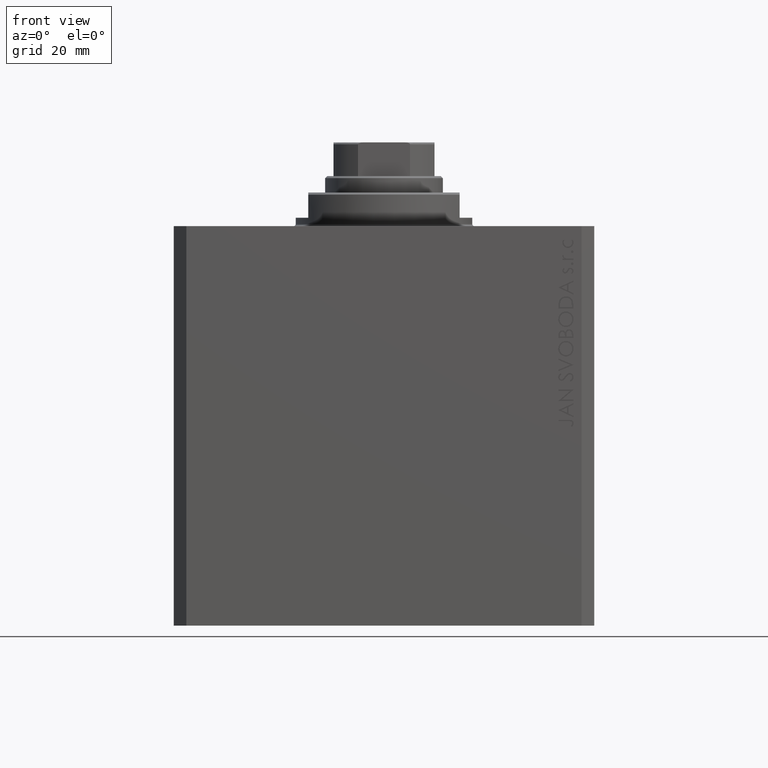
[diagram: clean part render]
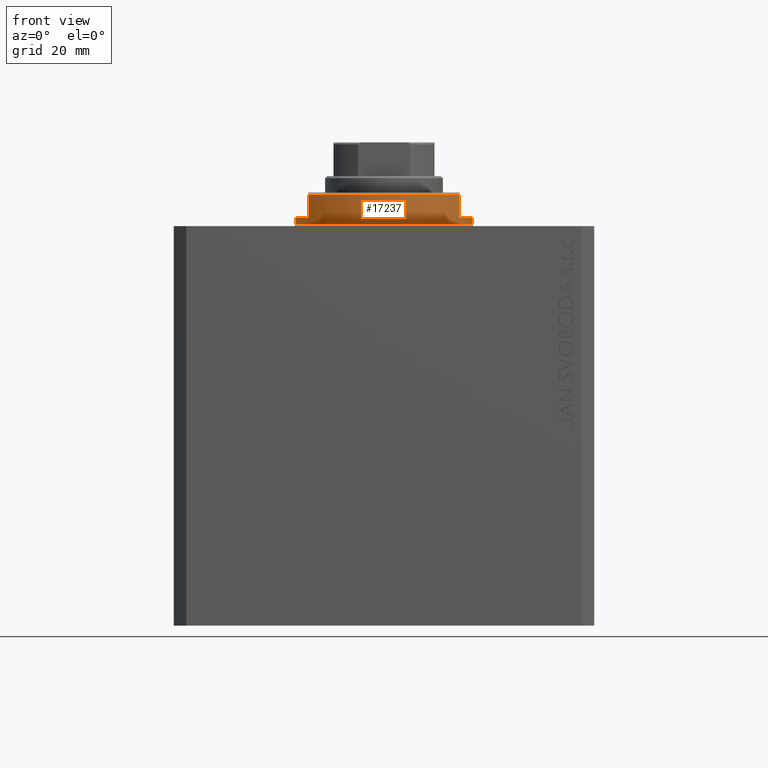
[diagram: same view with one face highlighted and labeled with its STEP entity id]
A machine part, front view. The second image highlights one B-rep face of the part: STEP entity #17237.
In plain terms, the highlighted cylindrical surface (partial cylindrical patch) has radius 21 mm, axis along (0, 0, -1).
Its self-contained STEP definition (entity closure, byte-faithful):
#1282 = CARTESIAN_POINT ( 'NONE',  ( 0.000000000000000000, 0.000000000000000000, -2.000000000000000000 ) ) ;
#1566 = CARTESIAN_POINT ( 'NONE',  ( 0.000000000000000000, 0.000000000000000000, -8.000000000000000000 ) ) ;
#1619 = DIRECTION ( 'NONE',  ( 0.000000000000000000, 0.000000000000000000, -1.000000000000000000 ) ) ;
#3015 = EDGE_CURVE ( 'NONE', #3108, #29620, #19132, .T. ) ;
#3108 = VERTEX_POINT ( 'NONE', #4013 ) ;
#3306 = DIRECTION ( 'NONE',  ( -1.000000000000000000, 0.000000000000000000, 0.000000000000000000 ) ) ;
#4013 = CARTESIAN_POINT ( 'NONE',  ( 21.00000000000000000, 0.000000000000000000, -2.000000000000000000 ) ) ;
#4133 = VERTEX_POINT ( 'NONE', #41981 ) ;
#4980 = CARTESIAN_POINT ( 'NONE',  ( 18.00000000000000000, -10.81665382639197048, -8.000000000000000000 ) ) ;
#7374 = CIRCLE ( 'NONE', #34120, 21.00000000000000000 ) ;
#7529 = EDGE_LOOP ( 'NONE', ( #31384, #17554, #8986, #36182, #19441, #44678, #47076, #8065 ) ) ;
#8065 = ORIENTED_EDGE ( 'NONE', *, *, #8830, .T. ) ;
#8830 = EDGE_CURVE ( 'NONE', #24578, #14911, #44404, .T. ) ;
#8986 = ORIENTED_EDGE ( 'NONE', *, *, #25280, .T. ) ;
#8996 = DIRECTION ( 'NONE',  ( 1.000000000000000000, 0.000000000000000000, 0.000000000000000000 ) ) ;
#12346 = CARTESIAN_POINT ( 'NONE',  ( 0.000000000000000000, 0.000000000000000000, -0.5000000000000004441 ) ) ;
#12759 = DIRECTION ( 'NONE',  ( -1.000000000000000000, 0.000000000000000000, 0.000000000000000000 ) ) ;
#13078 = CARTESIAN_POINT ( 'NONE',  ( -18.00000000000000000, -10.81665382639197048, -8.000000000000000000 ) ) ;
#14911 = VERTEX_POINT ( 'NONE', #45099 ) ;
#15059 = CARTESIAN_POINT ( 'NONE',  ( 0.000000000000000000, 0.000000000000000000, -2.000000000000000000 ) ) ;
#15074 = LINE ( 'NONE', #38018, #24481 ) ;
#15451 = LINE ( 'NONE', #22648, #35521 ) ;
#16047 = VERTEX_POINT ( 'NONE', #20155 ) ;
#16960 = EDGE_CURVE ( 'NONE', #29620, #4133, #38498, .T. ) ;
#17237 = ADVANCED_FACE ( 'NONE', ( #41109 ), #37747, .T. ) ;
#17554 = ORIENTED_EDGE ( 'NONE', *, *, #32455, .F. ) ;
#19132 = CIRCLE ( 'NONE', #39019, 21.00000000000000000 ) ;
#19272 = DIRECTION ( 'NONE',  ( 0.000000000000000000, 0.000000000000000000, -1.000000000000000000 ) ) ;
#19359 = EDGE_CURVE ( 'NONE', #46123, #4133, #7374, .T. ) ;
#19441 = ORIENTED_EDGE ( 'NONE', *, *, #16960, .F. ) ;
#19825 = DIRECTION ( 'NONE',  ( -0.000000000000000000, -0.000000000000000000, 1.000000000000000000 ) ) ;
#20155 = CARTESIAN_POINT ( 'NONE',  ( -21.00000000000000000, 2.571758278209441661E-15, -2.000000000000000000 ) ) ;
#21096 = AXIS2_PLACEMENT_3D ( 'NONE', #1566, #45613, #8996 ) ;
#21529 = DIRECTION ( 'NONE',  ( 0.000000000000000000, 0.000000000000000000, 1.000000000000000000 ) ) ;
#21597 = CIRCLE ( 'NONE', #40727, 21.00000000000000000 ) ;
#22648 = CARTESIAN_POINT ( 'NONE',  ( -21.00000000000000000, 2.571758278209441661E-15, -8.000000000000000000 ) ) ;
#22993 = VECTOR ( 'NONE', #39670, 1000.000000000000000 ) ;
#23372 = DIRECTION ( 'NONE',  ( -0.000000000000000000, -0.000000000000000000, -1.000000000000000000 ) ) ;
#23595 = DIRECTION ( 'NONE',  ( 1.000000000000000000, 0.000000000000000000, 0.000000000000000000 ) ) ;
#24348 = VERTEX_POINT ( 'NONE', #36162 ) ;
#24481 = VECTOR ( 'NONE', #19825, 1000.000000000000000 ) ;
#24578 = VERTEX_POINT ( 'NONE', #27497 ) ;
#25123 = DIRECTION ( 'NONE',  ( 0.000000000000000000, 0.000000000000000000, -1.000000000000000000 ) ) ;
#25280 = EDGE_CURVE ( 'NONE', #24348, #46123, #43250, .T. ) ;
#26462 = DIRECTION ( 'NONE',  ( -0.000000000000000000, -0.000000000000000000, 1.000000000000000000 ) ) ;
#27063 = EDGE_CURVE ( 'NONE', #3108, #24578, #15074, .T. ) ;
#27497 = CARTESIAN_POINT ( 'NONE',  ( 21.00000000000000000, 0.000000000000000000, -0.5000000000000004441 ) ) ;
#29185 = DIRECTION ( 'NONE',  ( -1.000000000000000000, 0.000000000000000000, 0.000000000000000000 ) ) ;
#29620 = VERTEX_POINT ( 'NONE', #44549 ) ;
#31384 = ORIENTED_EDGE ( 'NONE', *, *, #39393, .F. ) ;
#31414 = AXIS2_PLACEMENT_3D ( 'NONE', #12346, #23372, #23595 ) ;
#31943 = CARTESIAN_POINT ( 'NONE',  ( -18.00000000000000000, -10.81665382639197048, -7.499999999999990230 ) ) ;
#32455 = EDGE_CURVE ( 'NONE', #24348, #16047, #21597, .T. ) ;
#34120 = AXIS2_PLACEMENT_3D ( 'NONE', #39714, #21529, #3306 ) ;
#35482 = VECTOR ( 'NONE', #1619, 1000.000000000000000 ) ;
#35521 = VECTOR ( 'NONE', #26462, 1000.000000000000000 ) ;
#36162 = CARTESIAN_POINT ( 'NONE',  ( -18.00000000000000000, -10.81665382639197048, -2.000000000000000000 ) ) ;
#36182 = ORIENTED_EDGE ( 'NONE', *, *, #19359, .T. ) ;
#37747 = CYLINDRICAL_SURFACE ( 'NONE', #21096, 21.00000000000000000 ) ;
#38018 = CARTESIAN_POINT ( 'NONE',  ( 21.00000000000000000, 0.000000000000000000, -8.000000000000000000 ) ) ;
#38498 = LINE ( 'NONE', #4980, #35482 ) ;
#39019 = AXIS2_PLACEMENT_3D ( 'NONE', #15059, #25123, #29185 ) ;
#39393 = EDGE_CURVE ( 'NONE', #16047, #14911, #15451, .T. ) ;
#39670 = DIRECTION ( 'NONE',  ( 0.000000000000000000, 0.000000000000000000, -1.000000000000000000 ) ) ;
#39714 = CARTESIAN_POINT ( 'NONE',  ( 0.000000000000000000, 0.000000000000000000, -7.499999999999989342 ) ) ;
#40727 = AXIS2_PLACEMENT_3D ( 'NONE', #1282, #19272, #12759 ) ;
#41109 = FACE_OUTER_BOUND ( 'NONE', #7529, .T. ) ;
#41981 = CARTESIAN_POINT ( 'NONE',  ( 18.00000000000000000, -10.81665382639197048, -7.499999999999989342 ) ) ;
#43250 = LINE ( 'NONE', #13078, #22993 ) ;
#44404 = CIRCLE ( 'NONE', #31414, 21.00000000000000000 ) ;
#44549 = CARTESIAN_POINT ( 'NONE',  ( 18.00000000000000000, -10.81665382639197048, -2.000000000000000000 ) ) ;
#44678 = ORIENTED_EDGE ( 'NONE', *, *, #3015, .F. ) ;
#45099 = CARTESIAN_POINT ( 'NONE',  ( -21.00000000000000000, 2.571758278209441661E-15, -0.5000000000000004441 ) ) ;
#45613 = DIRECTION ( 'NONE',  ( -0.000000000000000000, -0.000000000000000000, 1.000000000000000000 ) ) ;
#46123 = VERTEX_POINT ( 'NONE', #31943 ) ;
#47076 = ORIENTED_EDGE ( 'NONE', *, *, #27063, .T. ) ;